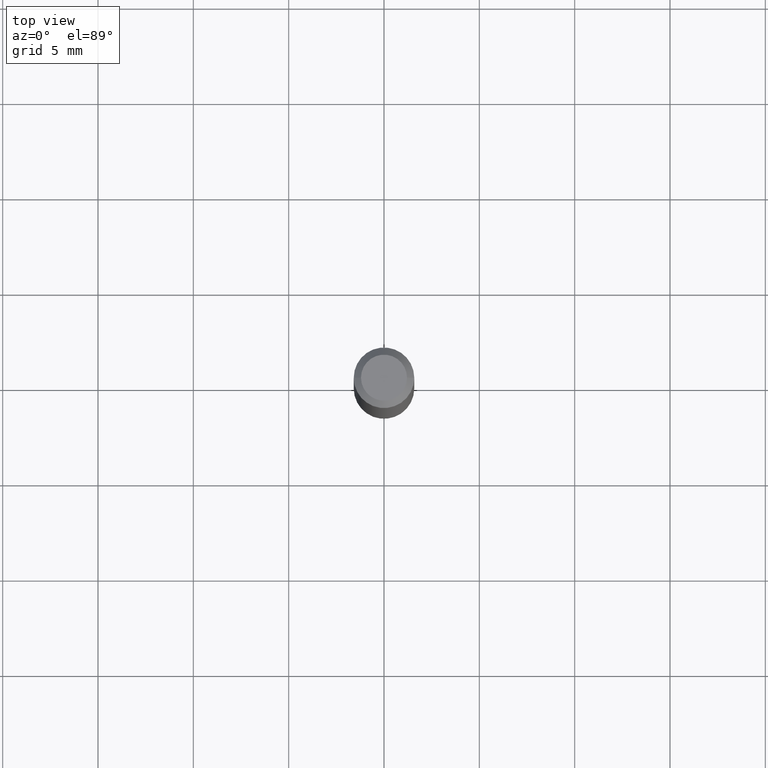
[diagram: clean part render]
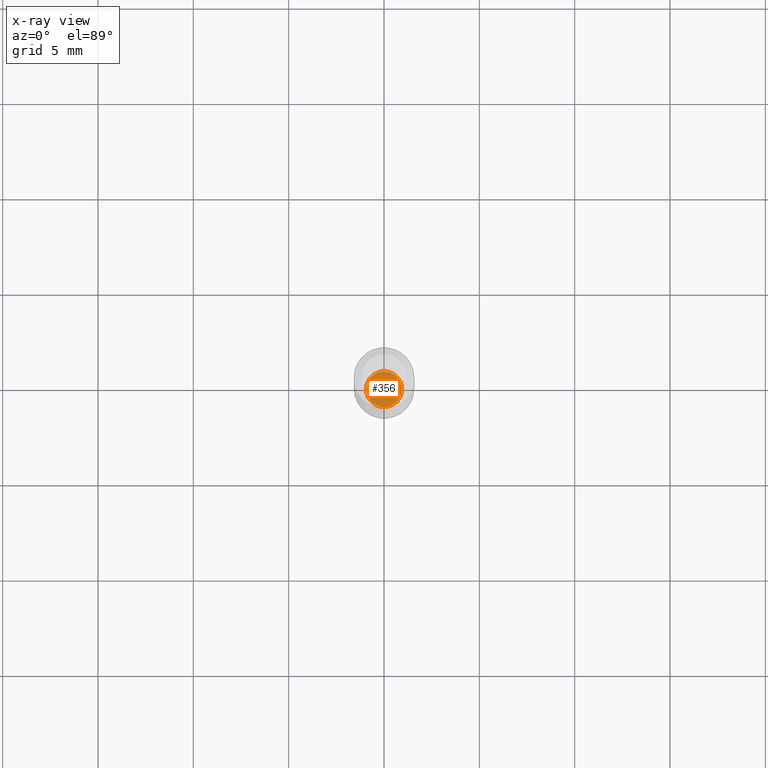
[diagram: x-ray — body ghosted, one internal face saturated and labeled with its STEP entity id]
A machine part, top view, then the same camera in x-ray: the body is ghosted and one INTERNAL B-rep face — a face not visible from any outside direction — is saturated and labeled: STEP entity #356.
In plain terms, the highlighted planar face has unit normal (-0, 0, 1).
Its self-contained STEP definition (entity closure, byte-faithful):
#2 = ORIENTED_EDGE ( 'NONE', *, *, #321, .F. ) ;
#38 = AXIS2_PLACEMENT_3D ( 'NONE', #91, #342, #421 ) ;
#56 = CARTESIAN_POINT ( 'NONE',  ( 3.393087968581877252E-29, -4.844430357644865674E-15, -1.387500000000000178 ) ) ;
#91 = CARTESIAN_POINT ( 'NONE',  ( 3.393087968581877252E-29, -4.844430357644865674E-15, -1.387500000000000178 ) ) ;
#135 = DIRECTION ( 'NONE',  ( -2.445468806185136597E-29, 3.491481338843145583E-15, 1.000000000000000000 ) ) ;
#144 = CARTESIAN_POINT ( 'NONE',  ( 3.393087968581877252E-29, -4.844430357644865674E-15, -1.387500000000000178 ) ) ;
#153 = DIRECTION ( 'NONE',  ( 1.000000000000000000, -6.982962677686265922E-15, 4.876176775795935793E-29 ) ) ;
#187 = CARTESIAN_POINT ( 'NONE',  ( 0.03699999999999999123, -5.102799976719256880E-15, -1.387500000000000178 ) ) ;
#213 = VERTEX_POINT ( 'NONE', #187 ) ;
#225 = EDGE_LOOP ( 'NONE', ( #353, #2 ) ) ;
#238 = FACE_OUTER_BOUND ( 'NONE', #225, .T. ) ;
#252 = AXIS2_PLACEMENT_3D ( 'NONE', #56, #135, #458 ) ;
#266 = CIRCLE ( 'NONE', #38, 0.03699999999999999123 ) ;
#296 = CIRCLE ( 'NONE', #252, 0.03699999999999999123 ) ;
#298 = EDGE_CURVE ( 'NONE', #213, #406, #296, .T. ) ;
#321 = EDGE_CURVE ( 'NONE', #406, #213, #266, .T. ) ;
#342 = DIRECTION ( 'NONE',  ( -2.445468806185136597E-29, 3.491481338843145583E-15, 1.000000000000000000 ) ) ;
#346 = PLANE ( 'NONE',  #351 ) ;
#351 = AXIS2_PLACEMENT_3D ( 'NONE', #144, #505, #153 ) ;
#353 = ORIENTED_EDGE ( 'NONE', *, *, #298, .F. ) ;
#356 = ADVANCED_FACE ( 'NONE', ( #238 ), #346, .F. ) ;
#357 = CARTESIAN_POINT ( 'NONE',  ( -0.03699999999999999123, -4.578880318239517171E-15, -1.387500000000000178 ) ) ;
#406 = VERTEX_POINT ( 'NONE', #357 ) ;
#421 = DIRECTION ( 'NONE',  ( 1.000000000000000000, -6.982962677686255667E-15, 0.000000000000000000 ) ) ;
#458 = DIRECTION ( 'NONE',  ( 1.000000000000000000, -6.982962677686255667E-15, 0.000000000000000000 ) ) ;
#505 = DIRECTION ( 'NONE',  ( -2.438088387897960049E-29, 3.491481338843145188E-15, 1.000000000000000000 ) ) ;